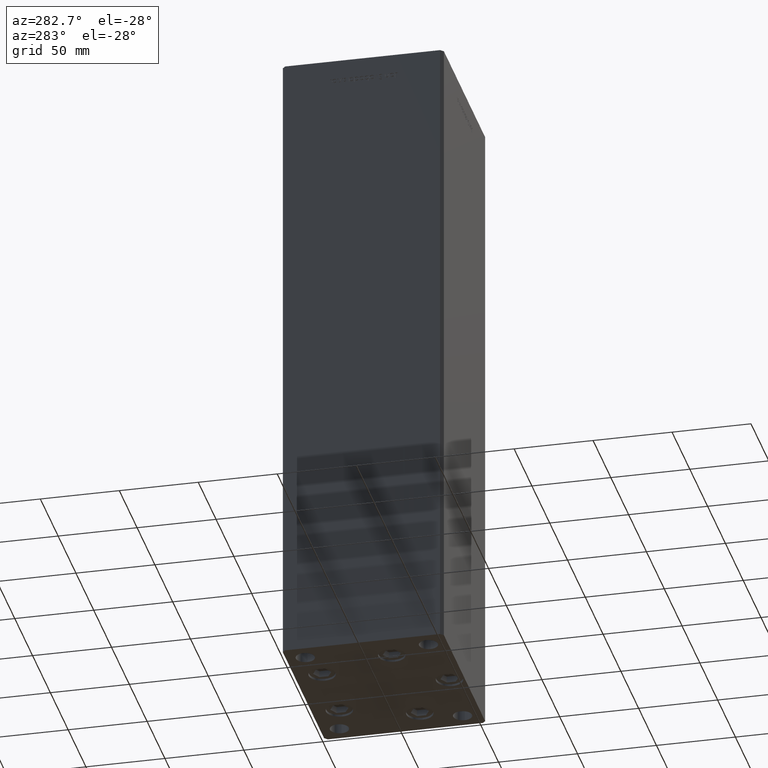
[diagram: clean part render]
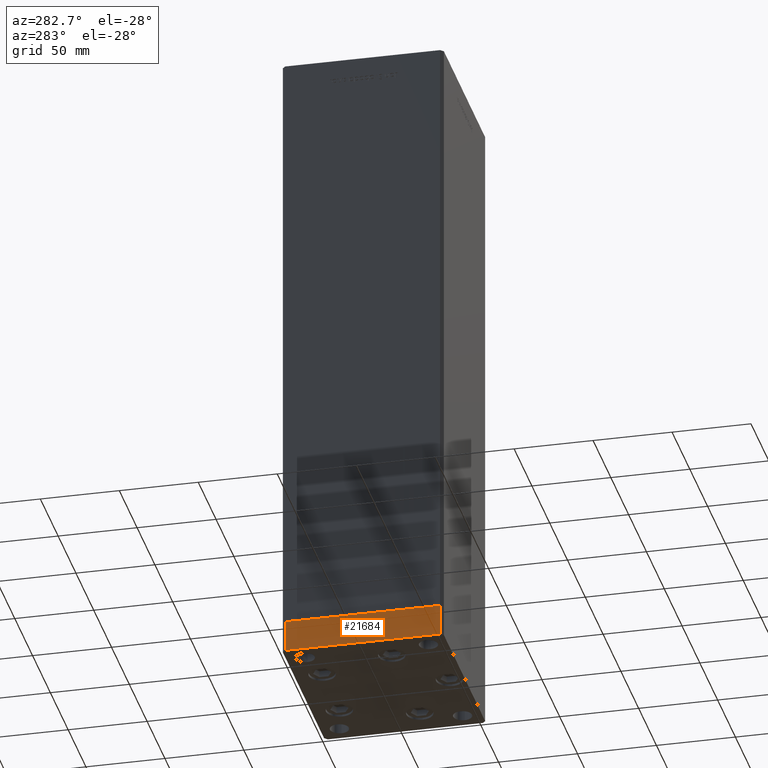
[diagram: same view with one face highlighted and labeled with its STEP entity id]
A machine part, auxiliary view. The second image highlights one B-rep face of the part: STEP entity #21684.
In plain terms, the highlighted planar face has unit normal (-1, 0, 0).
Its self-contained STEP definition (entity closure, byte-faithful):
#593 = CARTESIAN_POINT ( 'NONE',  ( 59.99999999999994316, 49.00000000000000000, 0.000000000000000000 ) ) ;
#990 = LINE ( 'NONE', #40540, #29767 ) ;
#1385 = LINE ( 'NONE', #17372, #7238 ) ;
#1839 = DIRECTION ( 'NONE',  ( -7.080503983578804809E-16, 1.000000000000000000, 0.000000000000000000 ) ) ;
#3862 = VECTOR ( 'NONE', #30164, 1000.000000000000000 ) ;
#6380 = CARTESIAN_POINT ( 'NONE',  ( 59.99999999999994316, 49.00000000000000000, -20.00000000000000000 ) ) ;
#7075 = VERTEX_POINT ( 'NONE', #21364 ) ;
#7238 = VECTOR ( 'NONE', #12921, 1000.000000000000000 ) ;
#9589 = ORIENTED_EDGE ( 'NONE', *, *, #11734, .T. ) ;
#9673 = EDGE_LOOP ( 'NONE', ( #27309, #25258, #9589, #23976 ) ) ;
#9895 = AXIS2_PLACEMENT_3D ( 'NONE', #34571, #34836, #1839 ) ;
#10309 = LINE ( 'NONE', #6380, #18905 ) ;
#11734 = EDGE_CURVE ( 'NONE', #36493, #14660, #990, .T. ) ;
#12788 = DIRECTION ( 'NONE',  ( -7.080503983578803823E-16, 1.000000000000000000, 0.000000000000000000 ) ) ;
#12921 = DIRECTION ( 'NONE',  ( -7.080503983578803823E-16, 1.000000000000000000, 0.000000000000000000 ) ) ;
#13044 = EDGE_CURVE ( 'NONE', #7075, #46459, #1385, .T. ) ;
#14660 = VERTEX_POINT ( 'NONE', #15151 ) ;
#15151 = CARTESIAN_POINT ( 'NONE',  ( 59.99999999999994316, 49.00000000000000000, -20.00000000000000000 ) ) ;
#17372 = CARTESIAN_POINT ( 'NONE',  ( 60.00000000000001421, -48.99999999999999289, 0.000000000000000000 ) ) ;
#18905 = VECTOR ( 'NONE', #38331, 1000.000000000000000 ) ;
#21364 = CARTESIAN_POINT ( 'NONE',  ( 60.00000000000001421, -48.99999999999999289, 0.000000000000000000 ) ) ;
#21684 = ADVANCED_FACE ( 'NONE', ( #46594 ), #46861, .T. ) ;
#23976 = ORIENTED_EDGE ( 'NONE', *, *, #40604, .T. ) ;
#25258 = ORIENTED_EDGE ( 'NONE', *, *, #39887, .F. ) ;
#27309 = ORIENTED_EDGE ( 'NONE', *, *, #13044, .F. ) ;
#29767 = VECTOR ( 'NONE', #12788, 1000.000000000000000 ) ;
#29909 = CARTESIAN_POINT ( 'NONE',  ( 60.00000000000001421, -48.99999999999999289, -20.00000000000000000 ) ) ;
#30164 = DIRECTION ( 'NONE',  ( 0.000000000000000000, 0.000000000000000000, 1.000000000000000000 ) ) ;
#33852 = LINE ( 'NONE', #29909, #3862 ) ;
#34571 = CARTESIAN_POINT ( 'NONE',  ( 60.00000000000001421, -48.99999999999999289, -20.00000000000000000 ) ) ;
#34836 = DIRECTION ( 'NONE',  ( 1.000000000000000000, 7.080503983578804809E-16, -0.000000000000000000 ) ) ;
#36493 = VERTEX_POINT ( 'NONE', #48710 ) ;
#38331 = DIRECTION ( 'NONE',  ( 0.000000000000000000, 0.000000000000000000, 1.000000000000000000 ) ) ;
#39887 = EDGE_CURVE ( 'NONE', #36493, #7075, #33852, .T. ) ;
#40540 = CARTESIAN_POINT ( 'NONE',  ( 60.00000000000001421, -48.99999999999999289, -20.00000000000000000 ) ) ;
#40604 = EDGE_CURVE ( 'NONE', #14660, #46459, #10309, .T. ) ;
#46459 = VERTEX_POINT ( 'NONE', #593 ) ;
#46594 = FACE_OUTER_BOUND ( 'NONE', #9673, .T. ) ;
#46861 = PLANE ( 'NONE',  #9895 ) ;
#48710 = CARTESIAN_POINT ( 'NONE',  ( 60.00000000000001421, -48.99999999999999289, -20.00000000000000000 ) ) ;